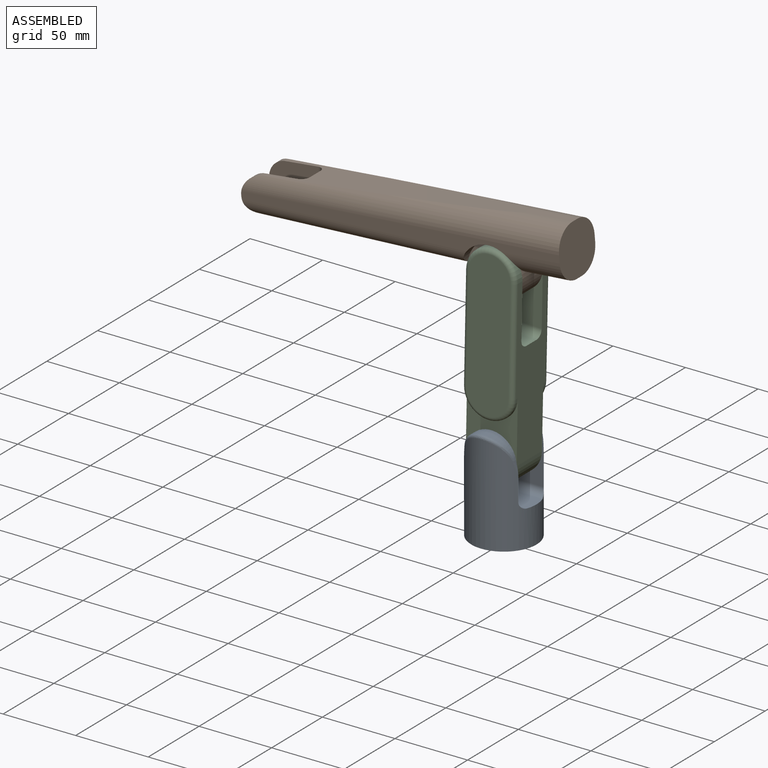
[diagram: assembled view]
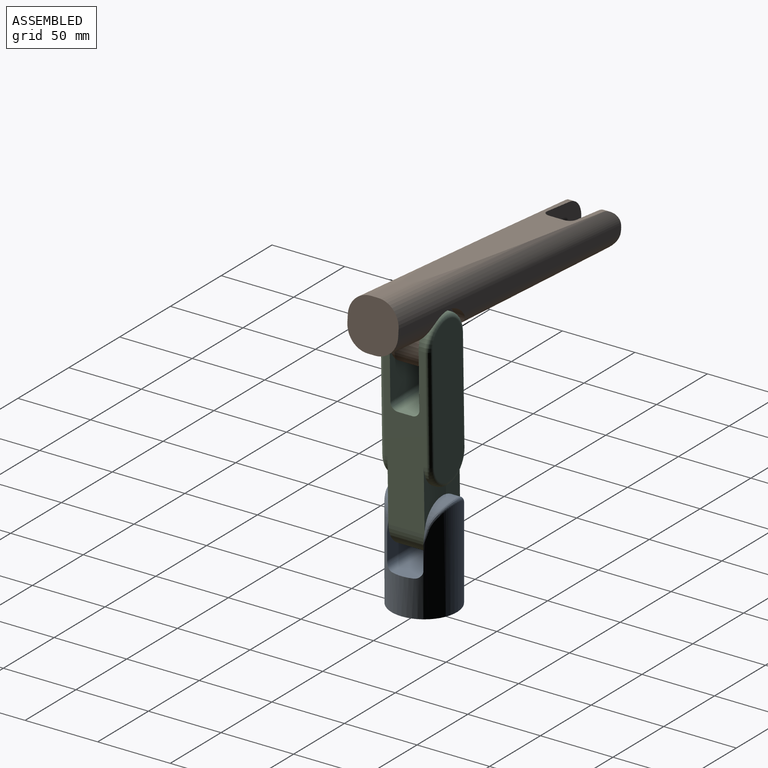
[diagram: assembled view, second angle]
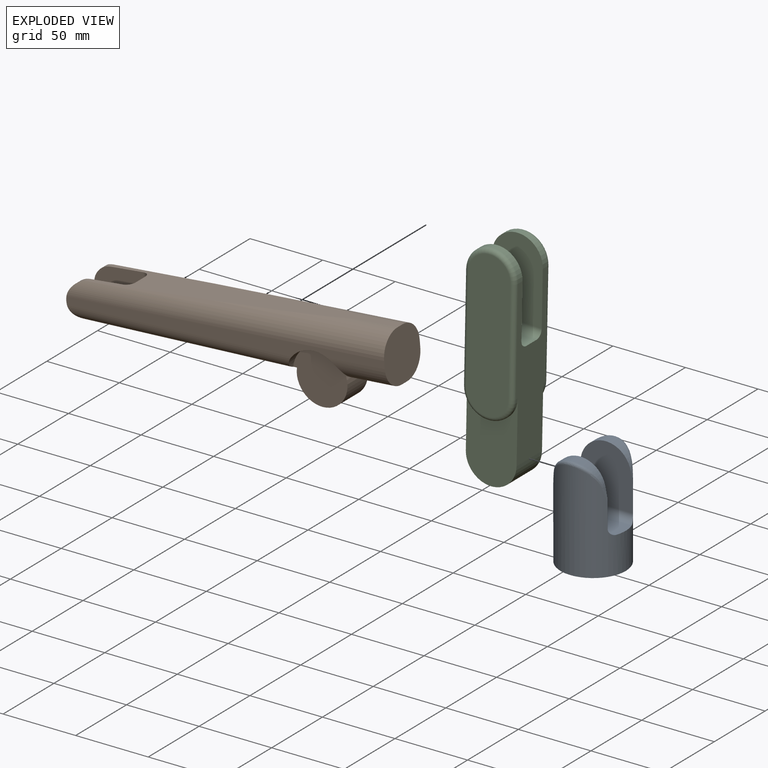
[diagram: exploded view]
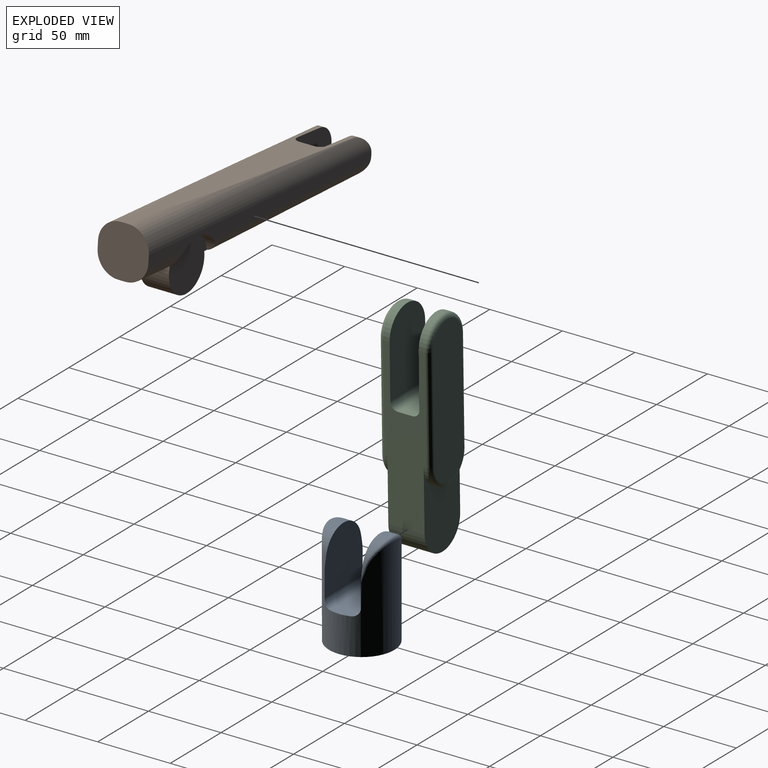
[diagram: exploded view, second angle]
ASSEMBLY  parts=3 mates=2
PART A: 19 faces, bbox 45.2x45.2x70.2 mm
  f0: plane 5.18x1.28mm, normal (0.98,0,0.2), area 3.5mm2, adj f1,f12,f18
  f1: cylinder r=17.5mm len=34.28mm, axis (0,-1,0), area 247.9mm2, adj f0,f2,f12,f17
  f2: plane 5.18x1.28mm, normal (-0.98,0,0.2), area 3.5mm2, adj f1,f12,f16
  f3: cylinder r=22.5mm len=68mm, axis (0,0,-1), area 6903.5mm2, adj f4,f8,f9,f10,f11,f12,f13,f14
  f4: plane 45x45mm, normal (0,0,-1), area 1590.4mm2, adj f3
  f5: plane 5.18x1.28mm, normal (0.98,0,0.2), area 3.5mm2, adj f6,f11,f13
  f6: cylinder r=17.5mm len=34.28mm, axis (0,-1,0), area 247.9mm2, adj f5,f7,f11,f14
  f7: plane 5.18x1.28mm, normal (-0.98,0,0.2), area 3.5mm2, adj f6,f11,f15
  f8: cylinder r=5mm len=42.43mm, axis (1,0,0), area 313.5mm2, adj f3,f9,f11
  f9: plane 45x15mm, normal (0,0,1), area 662.3mm2, adj f3,f8,f10
  f10: cylinder r=5mm len=42.43mm, axis (1,0,0), area 313.5mm2, adj f3,f9,f12
  f11: plane 40.17x37.59mm, normal (0,1,0), area 1320mm2, adj f3,f5,f6,f7,f8,f13,f15
  f12: plane 40.17x37.59mm, normal (0,-1,0), area 1320mm2, adj f0,f1,f2,f3,f10,f16,f18
  f13: bspline ~9.46x3.73mm, area 10.7mm2, adj f3,f5,f11,f14
  f14: bspline ~35x16.9mm, area 121.6mm2, adj f3,f6,f13,f15
  f15: bspline ~9.46x3.73mm, area 10.7mm2, adj f3,f7,f11,f14
  f16: bspline ~9.46x3.73mm, area 10.7mm2, adj f2,f3,f12,f17
  f17: bspline ~34.8x16.84mm, area 121.6mm2, adj f1,f3,f16,f18
  f18: bspline ~9.46x3.73mm, area 10.7mm2, adj f0,f3,f12,f17
PART B: 27 faces, bbox 220.1x35.1x55.1 mm
  f0: cylinder r=10mm len=155.14mm, axis (1,0,-0.03), area 2240.4mm2, adj f2,f7,f9,f12,f16,f17,f21,f24
  f1: cylinder r=10mm len=155.14mm, axis (-1,0,0.03), area 2240.7mm2, adj f3,f6,f9,f12,f14,f15,f22,f25
  f2: plane 220x9.14mm, normal (0,1,0), area 1397mm2, adj f0,f4,f10,f17,f18,f24
  f3: plane 220x9.14mm, normal (0,-1,0), area 1397mm2, adj f1,f5,f10,f15,f19,f25
  f4: cylinder r=15mm len=219.75mm, axis (-1,0,0), area 3588.3mm2, adj f2,f8,f10,f11,f23,f24
  f5: cylinder r=15mm len=219.75mm, axis (1,0,0), area 3588.3mm2, adj f3,f8,f10,f11,f25,f26
  f6: plane 35x26.55mm, normal (0,1,0), area 833.5mm2, adj f1,f8,f22,f25,f26
  f7: plane 35x26.55mm, normal (0,-1,0), area 833.5mm2, adj f0,f8,f21,f23,f24
  f8: plane 174.29x26.77mm, normal (-0.03,0,1), area 2957.4mm2, adj f4,f5,f6,f7,f11,f20,f21,f22
  f9: cylinder r=17.5mm len=35mm, axis (0,1,0), area 1235.5mm2, adj f0,f1,f12,f13,f14,f16,f18,f19
  f10: plane 35x35mm, normal (1,0,0), area 1031.9mm2, adj f2,f3,f4,f5,f11,f13,f18,f19
  f11: plane 32.68x5mm, normal (0,0,1), area 163.4mm2, adj f4,f5,f8,f10
  f12: plane 113.52x15.01mm, normal (-0.03,0,-1), area 1694.3mm2, adj f0,f1,f9,f20,f21,f22
  f13: plane 32.68x5mm, normal (0,0,-1), area 163.4mm2, adj f9,f10,f18,f19
  f14: plane 39.1x37.5mm, normal (0,-1,0), area 1088.3mm2, adj f1,f9,f15,f19
  f15: cylinder r=20mm len=39.1mm, axis (0,-1,0), area 352.2mm2, adj f1,f3,f14,f19
  f16: plane 39.12x37.5mm, normal (0,1,0), area 1088.5mm2, adj f0,f9,f17,f18
  f17: cylinder r=20mm len=39.12mm, axis (0,1,0), area 357.6mm2, adj f0,f2,f16,f18
  f18: cylinder r=15mm len=40.32mm, axis (1,0,0), area 784.4mm2, adj f2,f9,f10,f13,f16,f17
  f19: cylinder r=15mm len=40.32mm, axis (-1,0,0), area 784.7mm2, adj f3,f9,f10,f13,f14,f15
  f20: plane 27.14x10mm, normal (-1,0,0), area 271.4mm2, adj f8,f12,f21,f22
  f21: cylinder r=5mm len=27.14mm, axis (0,0,-1), area 211.3mm2, adj f0,f7,f8,f12,f20
  f22: cylinder r=5mm len=27.14mm, axis (0,0,-1), area 211.3mm2, adj f1,f6,f8,f12,f20
  f23: plane 3.37x0.05mm, normal (-0.26,0,-0.96), area 0.2mm2, adj f4,f7,f8,f24
  f24: cylinder r=12.84mm len=25.28mm, axis (0,-1,0), area 204.8mm2, adj f0,f2,f4,f7,f23
  f25: cylinder r=12.84mm len=25.28mm, axis (0,-1,0), area 204.8mm2, adj f1,f3,f5,f6,f26
  f26: plane 3.37x0.05mm, normal (-0.26,0,-0.96), area 0.2mm2, adj f5,f6,f8,f25
PART C: 24 faces, bbox 37.9x35x151.4 mm
  f0: plane 115x29mm, normal (1,0,0), area 2325.7mm2, adj f1,f3,f4,f7,f8,f9,f10,f11
  f1: cylinder r=17.5mm len=35mm, axis (0,1,0), area 1374.4mm2, adj f0,f5,f13,f15
  f2: plane 101.5x29mm, normal (0,-1,0), area 2763mm2, adj f20,f21,f22,f23
  f3: cylinder r=17.5mm len=35mm, axis (0,1,0), area 247.4mm2, adj f0,f5,f8,f16
  f4: cylinder r=17.5mm len=35mm, axis (0,1,0), area 247.4mm2, adj f0,f5,f7,f20
  f5: plane 115x29mm, normal (-1,0,0), area 2325.7mm2, adj f1,f3,f4,f7,f8,f9,f10,f11
  f6: plane 101.5x29mm, normal (0,1,0), area 2763mm2, adj f16,f17,f18,f19
  f7: plane 55x35mm, normal (0,1,0), area 1793.6mm2, adj f0,f4,f5,f9
  f8: plane 55x35mm, normal (0,-1,0), area 1793.6mm2, adj f0,f3,f5,f11
  f9: cylinder r=5mm len=35mm, axis (1,0,0), area 274.9mm2, adj f0,f5,f7,f10
  f10: plane 35x10mm, normal (0,0,1), area 350mm2, adj f0,f5,f9,f11
  f11: cylinder r=5mm len=35mm, axis (1,0,0), area 274.9mm2, adj f0,f5,f8,f10
  f12: cylinder r=17.5mm len=35mm, axis (0,-1,0), area 110mm2, adj f0,f5,f13,f23
  f13: plane 60x35mm, normal (0,-1,0), area 1487.5mm2, adj f0,f1,f5,f12
  f14: cylinder r=17.5mm len=35mm, axis (0,1,0), area 110mm2, adj f0,f5,f15,f19
  f15: plane 60x35mm, normal (0,1,0), area 1487.5mm2, adj f0,f1,f5,f14
  f16: torus R=14.5mm, axis (0,-1,0), area 242.9mm2, adj f3,f6,f17,f18
  f17: cylinder r=3mm len=72.5mm, axis (0,0,1), area 341.6mm2, adj f0,f6,f16,f19
  f18: cylinder r=3mm len=72.5mm, axis (0,0,-1), area 341.6mm2, adj f5,f6,f16,f19
  f19: torus R=14.5mm, axis (0,-1,0), area 242.9mm2, adj f6,f14,f17,f18
  f20: torus R=14.5mm, axis (0,-1,0), area 242.9mm2, adj f2,f4,f21,f22
  f21: cylinder r=3mm len=72.5mm, axis (0,0,1), area 341.6mm2, adj f2,f5,f20,f23
  f22: cylinder r=3mm len=72.5mm, axis (0,0,-1), area 341.6mm2, adj f0,f2,f20,f23
  f23: torus R=14.5mm, axis (0,-1,0), area 242.9mm2, adj f2,f12,f21,f22
PLACE A at identity fixed
PLACE B rot(axis=(0,-1,0),4.9deg) t=(2.32,0,167.48)mm
PLACE C rot(axis=(0,1,0),1.2deg) t=(1.16,0,109.99)mm
MATE revolute A.f1 <-> C.f1  axis (0,1,0) through (0,-12.5,52.5)mm
MATE revolute C.f3 <-> B.f15  axis (0,-1,0) through (2.32,10,167.48)mm
